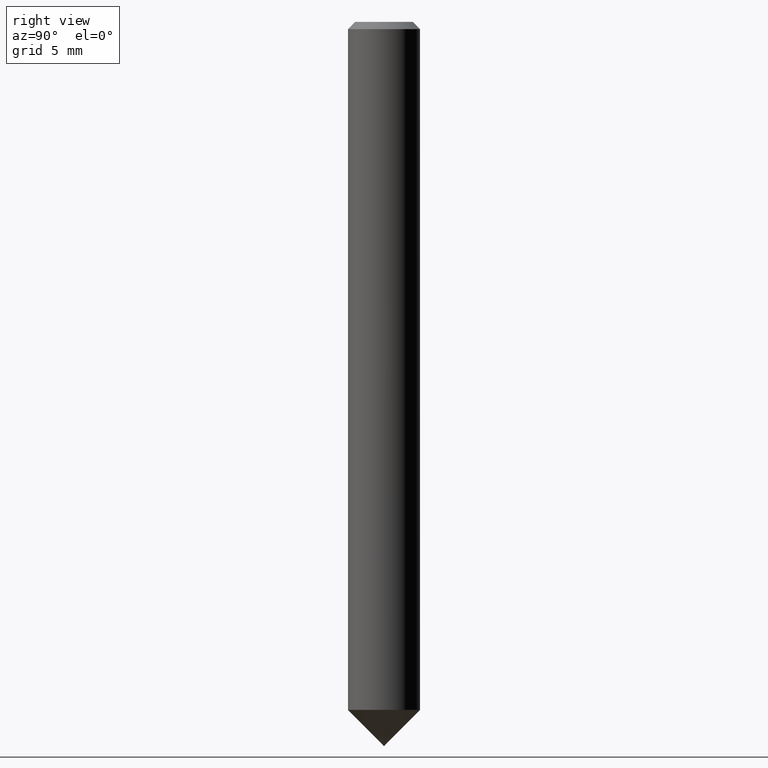
[diagram: clean part render]
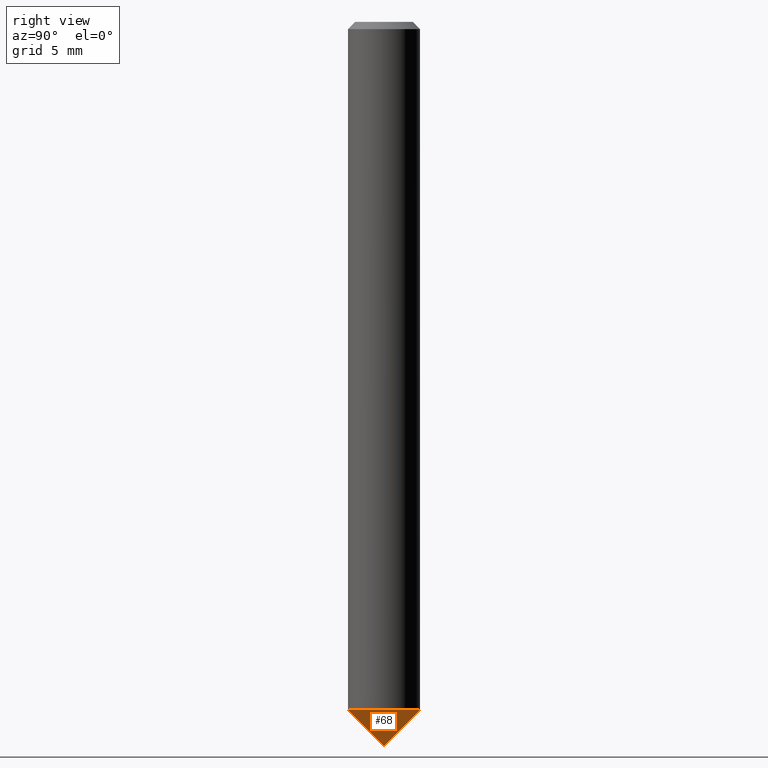
[diagram: same view with one face highlighted and labeled with its STEP entity id]
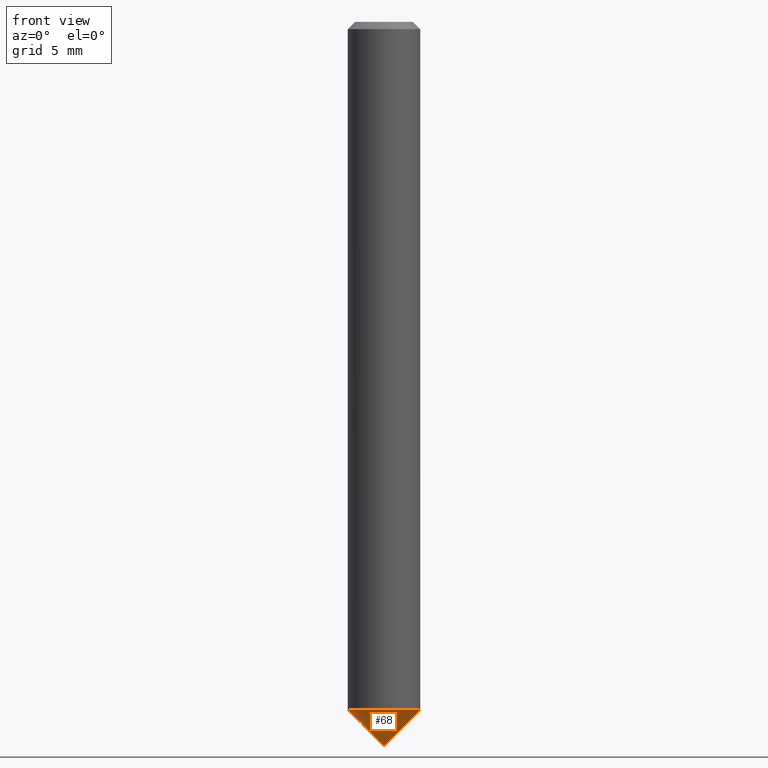
[diagram: same view with one face highlighted and labeled with its STEP entity id]
A machine part, right view. The second image highlights one B-rep face of the part: STEP entity #68.
A second angle (front view) of the same face is appended — the face is thin or edge-on in the first view.
In plain terms, the highlighted conical surface has half-angle 45 deg.
Its self-contained STEP definition (entity closure, byte-faithful):
#7 = CARTESIAN_POINT ( 'NONE',  ( 2.499999999999667821, 0.0000000000000000000, -47.50000000000003553 ) ) ;
#16 = AXIS2_PLACEMENT_3D ( 'NONE', #101, #18, #76 ) ;
#18 = DIRECTION ( 'NONE',  ( 6.982962677686266711E-15, -0.0000000000000000000, 1.000000000000000000 ) ) ;
#21 = CARTESIAN_POINT ( 'NONE',  ( -3.316907271900977823E-13, 0.0000000000000000000, -47.50000000000001421 ) ) ;
#46 = FACE_OUTER_BOUND ( 'NONE', #171, .T. ) ;
#55 = VERTEX_POINT ( 'NONE', #7 ) ;
#64 = CIRCLE ( 'NONE', #170, 2.499999999999999556 ) ;
#66 = ORIENTED_EDGE ( 'NONE', *, *, #134, .F. ) ;
#68 = ADVANCED_FACE ( 'NONE', ( #46 ), #107, .T. ) ;
#74 = DIRECTION ( 'NONE',  ( 6.982962677686266711E-15, -0.0000000000000000000, 1.000000000000000000 ) ) ;
#76 = DIRECTION ( 'NONE',  ( 1.000000000000000000, 0.0000000000000000000, -6.994405055138460172E-15 ) ) ;
#101 = CARTESIAN_POINT ( 'NONE',  ( 6.633814543801953224E-12, 0.0000000000000000000, 950.0000000000000000 ) ) ;
#107 = CONICAL_SURFACE ( 'NONE', #16, 1000.000000000003752, 0.7853981633974502774 ) ;
#112 = DIRECTION ( 'NONE',  ( 1.000000000000000000, 0.0000000000000000000, -8.326672684688675631E-15 ) ) ;
#134 = EDGE_CURVE ( 'NONE', #55, #55, #64, .T. ) ;
#170 = AXIS2_PLACEMENT_3D ( 'NONE', #21, #74, #112 ) ;
#171 = EDGE_LOOP ( 'NONE', ( #66 ) ) ;